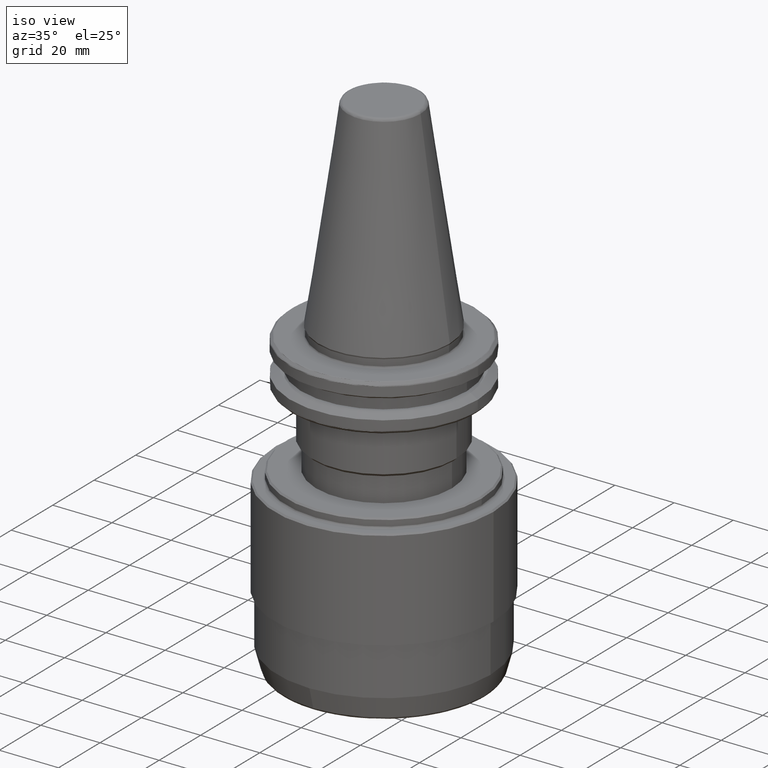
[diagram: clean part render]
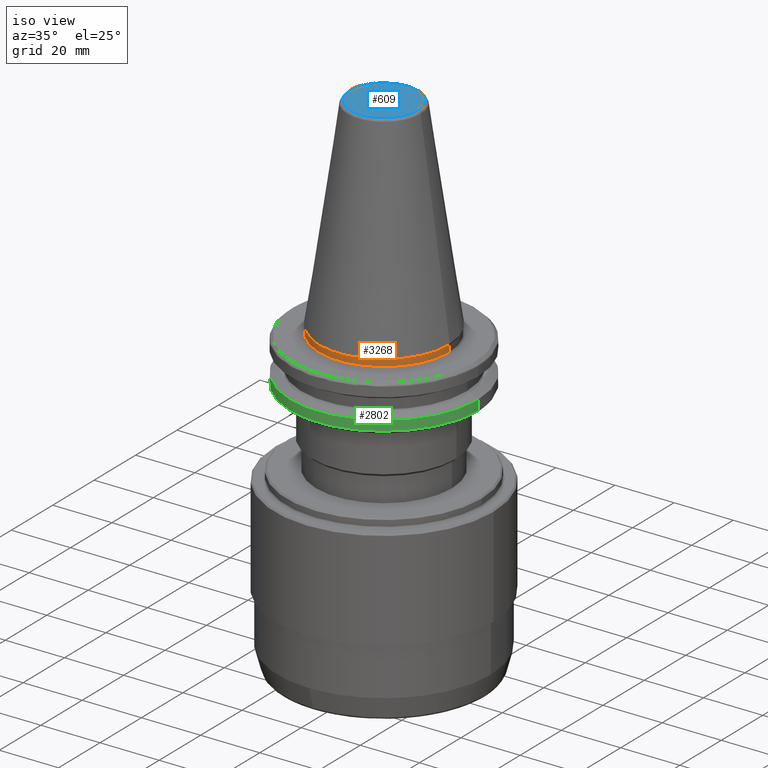
[diagram: same view with three faces highlighted in distinct colors, each labeled with its STEP entity id]
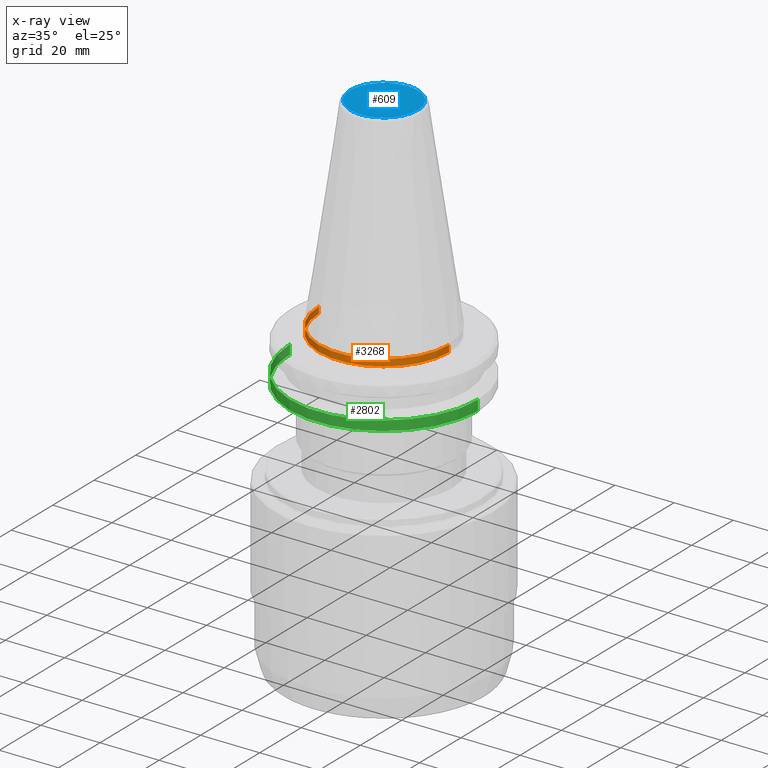
[diagram: x-ray of the same camera — body ghosted, the three highlighted faces saturated]
A machine part, iso view with three faces highlighted in distinct colors.
The next image is the same camera in x-ray (body ghosted, the three faces saturated) — at least one of them is partly hidden behind the body in this view.
Their STEP definitions:

[orange] entity #3268 — the highlighted cylindrical surface (partial cylindrical patch) has radius 22 mm, axis along (0, 0, 1).
#171 = CARTESIAN_POINT ( 'NONE',  ( 22.00000000000000000, 0.0000000000000000000, -2.699999999999994000 ) ) ;
#304 = EDGE_CURVE ( 'NONE', #1020, #2399, #3272, .T. ) ;
#326 = CARTESIAN_POINT ( 'NONE',  ( -22.00000000000000000, 2.694222958124176800E-015, 113.5216080541959500 ) ) ;
#339 = VERTEX_POINT ( 'NONE', #1231 ) ;
#364 = DIRECTION ( 'NONE',  ( 0.0000000000000000000, 0.0000000000000000000, 1.000000000000000000 ) ) ;
#478 = DIRECTION ( 'NONE',  ( 1.000000000000000000, 0.0000000000000000000, 0.0000000000000000000 ) ) ;
#500 = ORIENTED_EDGE ( 'NONE', *, *, #2948, .F. ) ;
#536 = FACE_OUTER_BOUND ( 'NONE', #2975, .T. ) ;
#620 = DIRECTION ( 'NONE',  ( 0.0000000000000000000, 0.0000000000000000000, 1.000000000000000000 ) ) ;
#934 = CARTESIAN_POINT ( 'NONE',  ( 22.00000000000000000, 0.0000000000000000000, 113.5216080541959500 ) ) ;
#969 = ORIENTED_EDGE ( 'NONE', *, *, #2209, .T. ) ;
#1019 = VECTOR ( 'NONE', #620, 1000.000000000000000 ) ;
#1020 = VERTEX_POINT ( 'NONE', #171 ) ;
#1096 = CARTESIAN_POINT ( 'NONE',  ( 22.00000000000000000, 0.0000000000000000000, -0.4825140571146652700 ) ) ;
#1157 = VECTOR ( 'NONE', #2704, 1000.000000000000000 ) ;
#1222 = CARTESIAN_POINT ( 'NONE',  ( -22.00000000000000000, 2.694222958124176800E-015, -2.699999999999994000 ) ) ;
#1231 = CARTESIAN_POINT ( 'NONE',  ( -22.00000000000000000, 2.694222958124176800E-015, -0.4825140571146635500 ) ) ;
#1294 = CARTESIAN_POINT ( 'NONE',  ( 0.0000000000000000000, 0.0000000000000000000, -2.699999999999994000 ) ) ;
#1356 = CARTESIAN_POINT ( 'NONE',  ( 0.0000000000000000000, 0.0000000000000000000, 113.5216080541959500 ) ) ;
#1490 = CIRCLE ( 'NONE', #3415, 22.00000000000000000 ) ;
#1566 = DIRECTION ( 'NONE',  ( 1.000000000000000000, 0.0000000000000000000, 0.0000000000000000000 ) ) ;
#1567 = CIRCLE ( 'NONE', #2483, 22.00000000000000000 ) ;
#1751 = ORIENTED_EDGE ( 'NONE', *, *, #304, .T. ) ;
#1889 = AXIS2_PLACEMENT_3D ( 'NONE', #1356, #2128, #478 ) ;
#1912 = VERTEX_POINT ( 'NONE', #1222 ) ;
#2012 = CARTESIAN_POINT ( 'NONE',  ( 0.0000000000000000000, 0.0000000000000000000, -0.4825140571146635500 ) ) ;
#2128 = DIRECTION ( 'NONE',  ( 0.0000000000000000000, 0.0000000000000000000, 1.000000000000000000 ) ) ;
#2209 = EDGE_CURVE ( 'NONE', #1912, #1020, #1490, .T. ) ;
#2275 = DIRECTION ( 'NONE',  ( 1.000000000000000000, 0.0000000000000000000, -7.885106708985486600E-017 ) ) ;
#2399 = VERTEX_POINT ( 'NONE', #1096 ) ;
#2407 = LINE ( 'NONE', #326, #1019 ) ;
#2483 = AXIS2_PLACEMENT_3D ( 'NONE', #2012, #364, #2275 ) ;
#2704 = DIRECTION ( 'NONE',  ( 0.0000000000000000000, 0.0000000000000000000, 1.000000000000000000 ) ) ;
#2948 = EDGE_CURVE ( 'NONE', #1912, #339, #2407, .T. ) ;
#2975 = EDGE_LOOP ( 'NONE', ( #500, #969, #1751, #3434 ) ) ;
#3059 = EDGE_CURVE ( 'NONE', #339, #2399, #1567, .T. ) ;
#3136 = DIRECTION ( 'NONE',  ( 0.0000000000000000000, 0.0000000000000000000, 1.000000000000000000 ) ) ;
#3242 = CYLINDRICAL_SURFACE ( 'NONE', #1889, 22.00000000000000000 ) ;
#3268 = ADVANCED_FACE ( 'NONE', ( #536 ), #3242, .T. ) ;
#3272 = LINE ( 'NONE', #934, #1157 ) ;
#3415 = AXIS2_PLACEMENT_3D ( 'NONE', #1294, #3136, #1566 ) ;
#3434 = ORIENTED_EDGE ( 'NONE', *, *, #3059, .F. ) ;

[blue] entity #609 — the highlighted planar face has unit normal (0, 0, 1).
#34 = CARTESIAN_POINT ( 'NONE',  ( 11.38516258961893100, 0.0000000000000000000, 68.39999999999999100 ) ) ;
#43 = CARTESIAN_POINT ( 'NONE',  ( 11.38516258961893100, -22.77032517923785800, 68.39999999999999100 ) ) ;
#71 = DIRECTION ( 'NONE',  ( 1.000000000000000000, 0.0000000000000000000, -0.0000000000000000000 ) ) ;
#111 = EDGE_LOOP ( 'NONE', ( #1333, #1139 ) ) ;
#150 = CARTESIAN_POINT ( 'NONE',  ( 11.38516258961893100, 22.77032517923785800, 68.39999999999999100 ) ) ;
#151 = CARTESIAN_POINT ( 'NONE',  ( -11.38516258961893400, -22.77032517923785800, 68.39999999999999100 ) ) ;
#412 = AXIS2_PLACEMENT_3D ( 'NONE', #676, #924, #71 ) ;
#481 =( BOUNDED_CURVE ( )  B_SPLINE_CURVE ( 3, ( #1308, #1040, #150, #2080 ),
 .UNSPECIFIED., .F., .T. ) 
 B_SPLINE_CURVE_WITH_KNOTS ( ( 4, 4 ),
 ( 0.0000000000000000000, 1.000000000000000000 ),
 .UNSPECIFIED. ) 
 CURVE ( )  GEOMETRIC_REPRESENTATION_ITEM ( )  RATIONAL_B_SPLINE_CURVE ( ( 1.000000000000000000, 0.3333333333333333700, 0.3333333333333333700, 1.000000000000000000 ) ) 
 REPRESENTATION_ITEM ( '' )  );
#609 = ADVANCED_FACE ( 'NONE', ( #610 ), #2649, .T. ) ;
#610 = FACE_OUTER_BOUND ( 'NONE', #111, .T. ) ;
#629 = EDGE_CURVE ( 'NONE', #2952, #2025, #2640, .T. ) ;
#676 = CARTESIAN_POINT ( 'NONE',  ( 0.0000000000000000000, -8.337524199435086500E-014, 68.39999999999999100 ) ) ;
#920 = CARTESIAN_POINT ( 'NONE',  ( 11.38516258961893100, 0.0000000000000000000, 68.39999999999999100 ) ) ;
#924 = DIRECTION ( 'NONE',  ( 0.0000000000000000000, 0.0000000000000000000, 1.000000000000000000 ) ) ;
#1040 = CARTESIAN_POINT ( 'NONE',  ( -11.38516258961892700, 22.77032517923785800, 68.39999999999999100 ) ) ;
#1139 = ORIENTED_EDGE ( 'NONE', *, *, #629, .F. ) ;
#1308 = CARTESIAN_POINT ( 'NONE',  ( -11.38516258961893100, 1.418516855507481500E-015, 68.39999999999999100 ) ) ;
#1333 = ORIENTED_EDGE ( 'NONE', *, *, #3506, .F. ) ;
#1961 = CARTESIAN_POINT ( 'NONE',  ( -11.38516258961893100, 1.418516855507481500E-015, 68.39999999999999100 ) ) ;
#2025 = VERTEX_POINT ( 'NONE', #1961 ) ;
#2080 = CARTESIAN_POINT ( 'NONE',  ( 11.38516258961893100, 0.0000000000000000000, 68.39999999999999100 ) ) ;
#2640 =( BOUNDED_CURVE ( )  B_SPLINE_CURVE ( 3, ( #34, #43, #151, #3572 ),
 .UNSPECIFIED., .F., .F. ) 
 B_SPLINE_CURVE_WITH_KNOTS ( ( 4, 4 ),
 ( 0.0000000000000000000, 1.000000000000000000 ),
 .UNSPECIFIED. ) 
 CURVE ( )  GEOMETRIC_REPRESENTATION_ITEM ( )  RATIONAL_B_SPLINE_CURVE ( ( 1.000000000000000000, 0.3333333333333333700, 0.3333333333333333700, 1.000000000000000000 ) ) 
 REPRESENTATION_ITEM ( '' )  );
#2649 = PLANE ( 'NONE',  #412 ) ;
#2952 = VERTEX_POINT ( 'NONE', #920 ) ;
#3506 = EDGE_CURVE ( 'NONE', #2025, #2952, #481, .T. ) ;
#3572 = CARTESIAN_POINT ( 'NONE',  ( -11.38516258961893100, 1.418516855507481500E-015, 68.39999999999999100 ) ) ;

[green] entity #2802 — the highlighted cylindrical surface (partial cylindrical patch) has radius 31.75 mm, axis along (0, 0, 1).
#74 = LINE ( 'NONE', #2581, #2891 ) ;
#90 = ORIENTED_EDGE ( 'NONE', *, *, #708, .T. ) ;
#155 = CARTESIAN_POINT ( 'NONE',  ( -31.75000000000000000, 3.888253587292846500E-015, -17.93431457505076300 ) ) ;
#330 = EDGE_CURVE ( 'NONE', #2042, #3340, #2475, .T. ) ;
#336 = DIRECTION ( 'NONE',  ( -1.000000000000000000, 0.0000000000000000000, 0.0000000000000000000 ) ) ;
#383 = EDGE_CURVE ( 'NONE', #3360, #3589, #1699, .T. ) ;
#400 = LINE ( 'NONE', #3084, #3207 ) ;
#475 = AXIS2_PLACEMENT_3D ( 'NONE', #2660, #1075, #767 ) ;
#667 = ORIENTED_EDGE ( 'NONE', *, *, #781, .T. ) ;
#708 = EDGE_CURVE ( 'NONE', #3589, #3340, #400, .T. ) ;
#767 = DIRECTION ( 'NONE',  ( 1.000000000000000000, 0.0000000000000000000, 0.0000000000000000000 ) ) ;
#781 = EDGE_CURVE ( 'NONE', #976, #1577, #2410, .T. ) ;
#863 = CARTESIAN_POINT ( 'NONE',  ( 31.75000000000000700, 0.0000000000000000000, -14.62183664205671500 ) ) ;
#959 = CIRCLE ( 'NONE', #1500, 31.75000000000000000 ) ;
#976 = VERTEX_POINT ( 'NONE', #155 ) ;
#1075 = DIRECTION ( 'NONE',  ( 0.0000000000000000000, 0.0000000000000000000, 1.000000000000000000 ) ) ;
#1168 = CARTESIAN_POINT ( 'NONE',  ( 30.56296919415016700, -8.600431037885712700, -17.93431457505076300 ) ) ;
#1270 = DIRECTION ( 'NONE',  ( 0.0000000000000000000, 0.0000000000000000000, 1.000000000000000000 ) ) ;
#1284 = DIRECTION ( 'NONE',  ( -0.0000000000000000000, -0.0000000000000000000, 1.000000000000000000 ) ) ;
#1314 = EDGE_CURVE ( 'NONE', #976, #2042, #74, .T. ) ;
#1353 = CARTESIAN_POINT ( 'NONE',  ( 31.75000000000000000, 0.0000000000000000000, -17.93431457505076300 ) ) ;
#1360 = DIRECTION ( 'NONE',  ( 1.000000000000000000, 0.0000000000000000000, 0.0000000000000000000 ) ) ;
#1385 = DIRECTION ( 'NONE',  ( -0.0000000000000000000, -0.0000000000000000000, 1.000000000000000000 ) ) ;
#1389 = CARTESIAN_POINT ( 'NONE',  ( 0.0000000000000000000, 0.0000000000000000000, -17.93431457505076300 ) ) ;
#1416 = CARTESIAN_POINT ( 'NONE',  ( 0.0000000000000000000, 0.0000000000000000000, -17.93431457505076300 ) ) ;
#1457 = CARTESIAN_POINT ( 'NONE',  ( -31.75000000000000700, 3.888253587292847300E-015, -14.62183664205671500 ) ) ;
#1460 = DIRECTION ( 'NONE',  ( 0.0000000000000000000, 0.0000000000000000000, 1.000000000000000000 ) ) ;
#1500 = AXIS2_PLACEMENT_3D ( 'NONE', #3032, #1460, #3301 ) ;
#1577 = VERTEX_POINT ( 'NONE', #1579 ) ;
#1579 = CARTESIAN_POINT ( 'NONE',  ( -30.52966748735167000, -8.717907037342307300, -17.93431457505076300 ) ) ;
#1699 = CIRCLE ( 'NONE', #3467, 31.75000000000000000 ) ;
#1816 = EDGE_LOOP ( 'NONE', ( #3564, #667, #1847, #3529, #90, #2082 ) ) ;
#1847 = ORIENTED_EDGE ( 'NONE', *, *, #3363, .T. ) ;
#1948 = FACE_OUTER_BOUND ( 'NONE', #1816, .T. ) ;
#2042 = VERTEX_POINT ( 'NONE', #1457 ) ;
#2082 = ORIENTED_EDGE ( 'NONE', *, *, #330, .F. ) ;
#2130 = DIRECTION ( 'NONE',  ( -0.0000000000000000000, -0.0000000000000000000, 1.000000000000000000 ) ) ;
#2204 = CARTESIAN_POINT ( 'NONE',  ( 0.0000000000000000000, 0.0000000000000000000, -14.62183664205671500 ) ) ;
#2231 = DIRECTION ( 'NONE',  ( 1.000000000000000000, 0.0000000000000000000, 0.0000000000000000000 ) ) ;
#2378 = AXIS2_PLACEMENT_3D ( 'NONE', #2204, #2130, #336 ) ;
#2410 = CIRCLE ( 'NONE', #2608, 31.75000000000000000 ) ;
#2475 = CIRCLE ( 'NONE', #2378, 31.75000000000000700 ) ;
#2488 = CYLINDRICAL_SURFACE ( 'NONE', #475, 31.75000000000000000 ) ;
#2581 = CARTESIAN_POINT ( 'NONE',  ( -31.75000000000000000, 3.888253587292846500E-015, 113.5216080541959500 ) ) ;
#2608 = AXIS2_PLACEMENT_3D ( 'NONE', #1389, #1385, #1360 ) ;
#2660 = CARTESIAN_POINT ( 'NONE',  ( 0.0000000000000000000, 0.0000000000000000000, 113.5216080541959500 ) ) ;
#2802 = ADVANCED_FACE ( 'NONE', ( #1948 ), #2488, .T. ) ;
#2891 = VECTOR ( 'NONE', #1270, 1000.000000000000000 ) ;
#2911 = DIRECTION ( 'NONE',  ( 0.0000000000000000000, 0.0000000000000000000, 1.000000000000000000 ) ) ;
#3032 = CARTESIAN_POINT ( 'NONE',  ( 0.0000000000000000000, 0.0000000000000000000, -17.93431457505076300 ) ) ;
#3084 = CARTESIAN_POINT ( 'NONE',  ( 31.75000000000000000, 0.0000000000000000000, 113.5216080541959500 ) ) ;
#3207 = VECTOR ( 'NONE', #2911, 1000.000000000000000 ) ;
#3301 = DIRECTION ( 'NONE',  ( 1.000000000000000000, 0.0000000000000000000, 0.0000000000000000000 ) ) ;
#3340 = VERTEX_POINT ( 'NONE', #863 ) ;
#3360 = VERTEX_POINT ( 'NONE', #1168 ) ;
#3363 = EDGE_CURVE ( 'NONE', #1577, #3360, #959, .T. ) ;
#3467 = AXIS2_PLACEMENT_3D ( 'NONE', #1416, #1284, #2231 ) ;
#3529 = ORIENTED_EDGE ( 'NONE', *, *, #383, .T. ) ;
#3564 = ORIENTED_EDGE ( 'NONE', *, *, #1314, .F. ) ;
#3589 = VERTEX_POINT ( 'NONE', #1353 ) ;